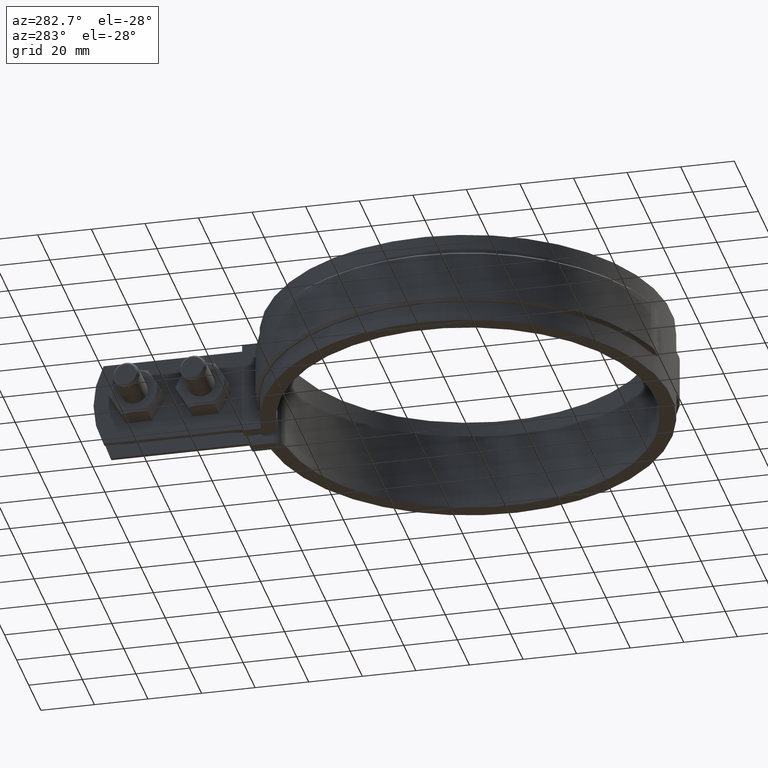
[diagram: clean part render]
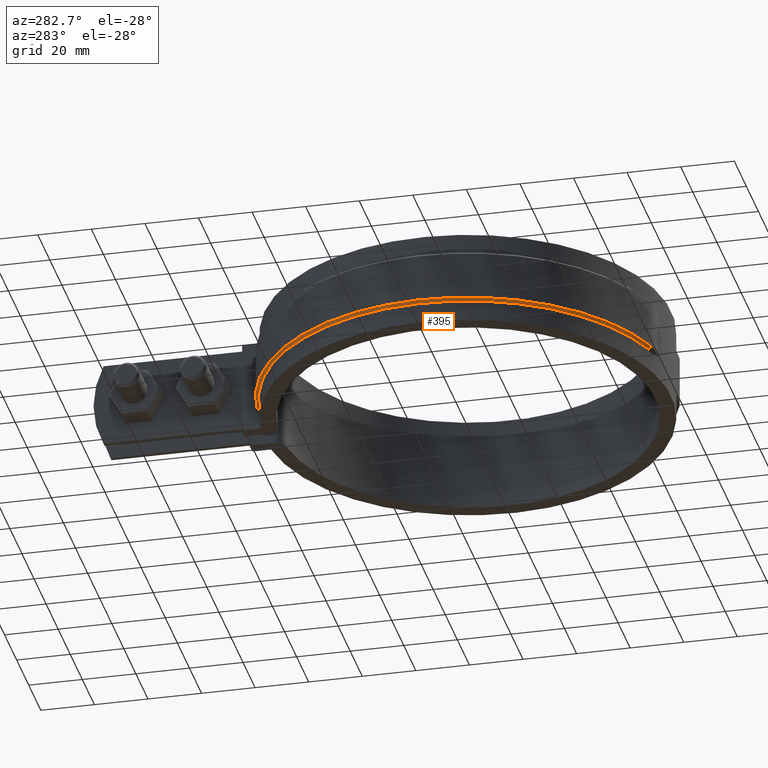
[diagram: same view with one face highlighted and labeled with its STEP entity id]
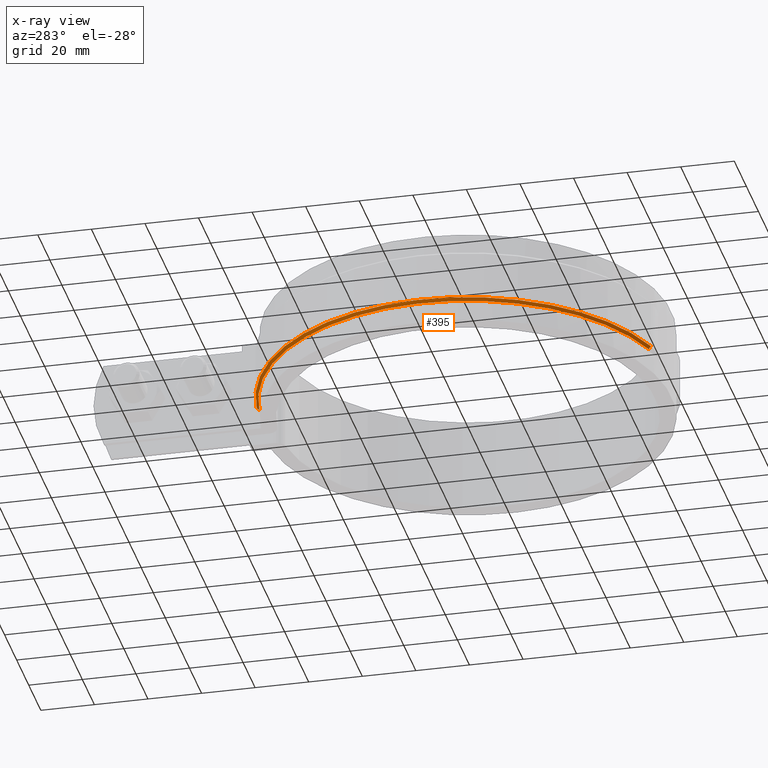
[diagram: x-ray of the same camera — body ghosted, the highlighted face saturated]
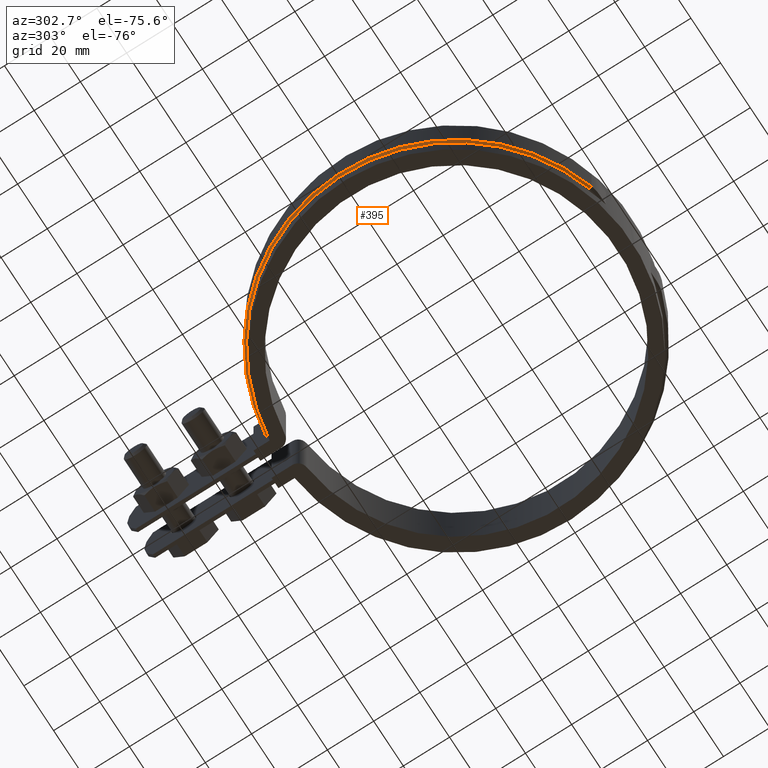
[diagram: same view with one face highlighted and labeled with its STEP entity id]
A machine part, auxiliary view. The second image highlights one B-rep face of the part: STEP entity #395.
The next image is the same camera in x-ray: the body ghosted, the highlighted face saturated — about 0% of this face is hidden behind the body in this view.
A second angle (auxiliary view) of the same face is appended — the face is thin or edge-on in the first view.
In plain terms, the highlighted conical surface has half-angle 45 deg.
Its self-contained STEP definition (entity closure, byte-faithful):
#395 = ADVANCED_FACE( '', ( #642 ), #643, .T. );
#642 = FACE_OUTER_BOUND( '', #1720, .T. );
#643 = CONICAL_SURFACE( '', #1721, 76.4000000000000, 0.785398163397441 );
#1720 = EDGE_LOOP( '', ( #4106, #4107, #4108, #4109 ) );
#1721 = AXIS2_PLACEMENT_3D( '', #4110, #4111, #4112 );
#4106 = ORIENTED_EDGE( '', *, *, #4860, .F. );
#4107 = ORIENTED_EDGE( '', *, *, #4867, .F. );
#4108 = ORIENTED_EDGE( '', *, *, #4829, .F. );
#4109 = ORIENTED_EDGE( '', *, *, #4872, .F. );
#4110 = CARTESIAN_POINT( '', ( -3.46944695195361E-015, -1.38777878078145E-014, -26.0000000000000 ) );
#4111 = DIRECTION( '', ( 0.000000000000000, 0.000000000000000, 1.00000000000000 ) );
#4112 = DIRECTION( '', ( 1.00000000000000, 0.000000000000000, 0.000000000000000 ) );
#4829 = EDGE_CURVE( '', #5402, #5396, #5404, .T. );
#4860 = EDGE_CURVE( '', #5445, #5447, #5448, .T. );
#4867 = EDGE_CURVE( '', #5396, #5445, #5456, .T. );
#4872 = EDGE_CURVE( '', #5447, #5402, #5461, .T. );
#5396 = VERTEX_POINT( '', #7954 );
#5402 = VERTEX_POINT( '', #7965 );
#5404 = LINE( '', #7967, #7968 );
#5445 = VERTEX_POINT( '', #8030 );
#5447 = VERTEX_POINT( '', #8033 );
#5448 = B_SPLINE_CURVE_WITH_KNOTS( '', 3, ( #8034, #8035, #8036, #8037 ), .UNSPECIFIED., .F., .F., ( 4, 4 ), ( 707.204454047822, 707.205873456458 ), .UNSPECIFIED. );
#5456 = CIRCLE( '', #8051, 76.4000000000000 );
#5461 = CIRCLE( '', #8060, 77.4000000000000 );
#7954 = CARTESIAN_POINT( '', ( -23.4041590270472, -72.7269230769231, -26.0000000000000 ) );
#7965 = CARTESIAN_POINT( '', ( -23.7104961870871, -73.6788461538462, -25.0000000000000 ) );
#7967 = CARTESIAN_POINT( '', ( -23.7104961870871, -73.6788461538462, -25.0000000000000 ) );
#7968 = VECTOR( '', #8748, 1000.00000000000 );
#8030 = CARTESIAN_POINT( '', ( -8.40000000000000, 75.9368158405394, -26.0000000000000 ) );
#8033 = CARTESIAN_POINT( '', ( -8.40000000000000, 76.9428359238207, -25.0000000000000 ) );
#8034 = CARTESIAN_POINT( '', ( -8.40000000000000, 75.9368158405357, -26.0000000000037 ) );
#8035 = CARTESIAN_POINT( '', ( -8.40000000000000, 76.2721689912148, -25.6666799680055 ) );
#8036 = CARTESIAN_POINT( '', ( -8.40000000000000, 76.6075088484149, -25.3333464618058 ) );
#8037 = CARTESIAN_POINT( '', ( -8.40000000000000, 76.9428359237980, -25.0000000000226 ) );
#8051 = AXIS2_PLACEMENT_3D( '', #8809, #8810, #8811 );
#8060 = AXIS2_PLACEMENT_3D( '', #8816, #8817, #8818 );
#8748 = DIRECTION( '', ( 0.216613083193633, 0.673111262860264, -0.707106781186554 ) );
#8809 = CARTESIAN_POINT( '', ( -3.46944695195361E-015, -1.38777878078145E-014, -26.0000000000000 ) );
#8810 = DIRECTION( '', ( 0.000000000000000, 0.000000000000000, -1.00000000000000 ) );
#8811 = DIRECTION( '', ( -1.00000000000000, 0.000000000000000, 0.000000000000000 ) );
#8816 = CARTESIAN_POINT( '', ( -3.46944695195361E-015, -1.38777878078145E-014, -25.0000000000000 ) );
#8817 = DIRECTION( '', ( 0.000000000000000, 0.000000000000000, 1.00000000000000 ) );
#8818 = DIRECTION( '', ( 1.00000000000000, 0.000000000000000, 0.000000000000000 ) );